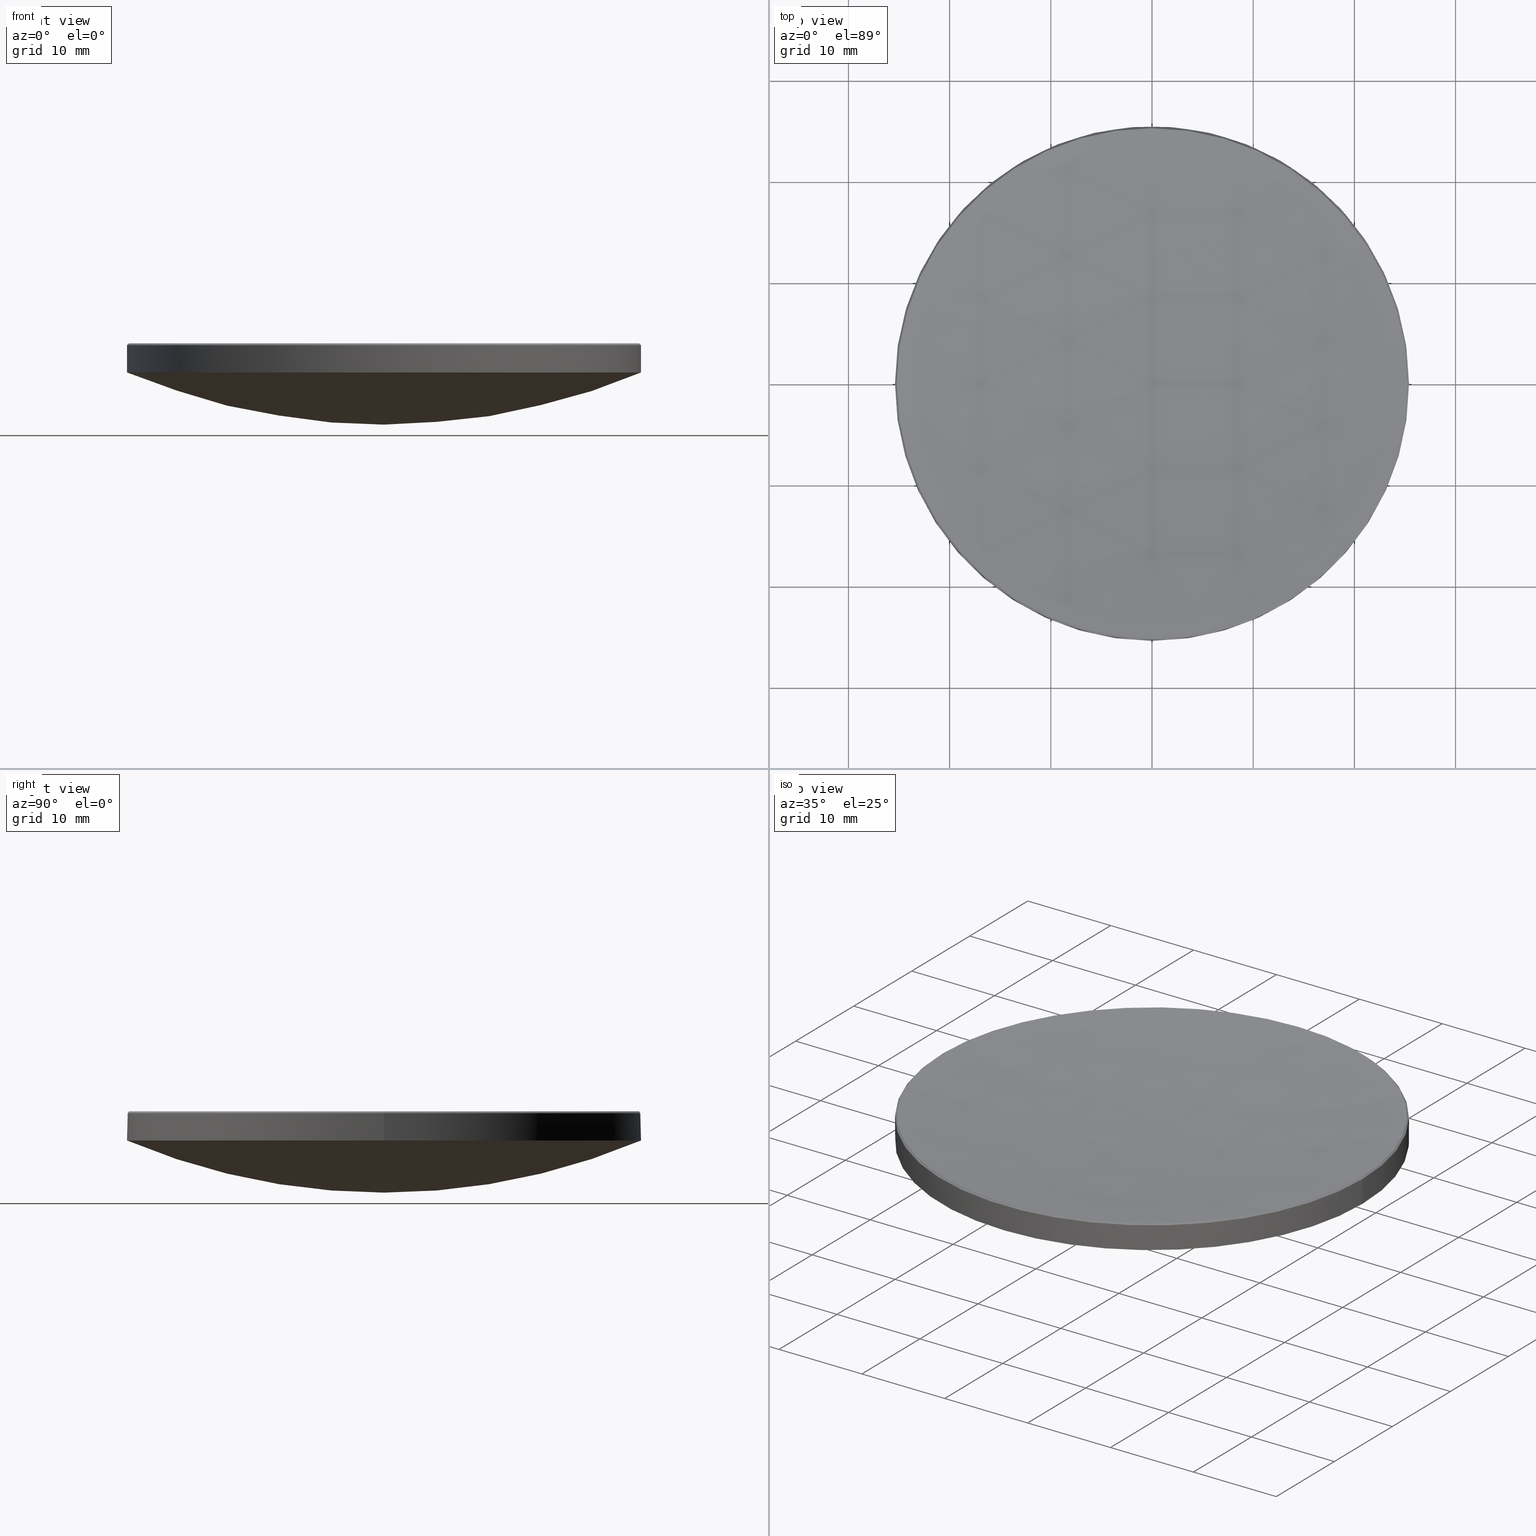
[diagram: canonical four-view strip — front | top / right | iso, engineering-drawing reading convention]
A machine part, canonical four-view strip (front | top / right | iso — engineering-drawing reading convention). The complete STEP part file that produces these views, byte-faithful:
ISO-10303-21;
HEADER;
FILE_DESCRIPTION (( 'STEP AP214' ),
    '1' );
FILE_NAME ('GLM1-050B-200-SWIR.STEP',
    '2024-08-09T02:25:44',
    ( 'Windows User' ),
    ( 'P R C' ),
    'SwSTEP 2.0',
    'SolidWorks 2022',
    '' );
FILE_SCHEMA (( 'AUTOMOTIVE_DESIGN' ));
ENDSEC;

DATA;
#1 = ORIENTED_EDGE ( 'NONE', *, *, #93, .T. ) ;
#2 = CARTESIAN_POINT ( 'NONE',  ( 0.000000000000000000, 0.000000000000000000, 73.00554641031111203 ) ) ;
#3 = EDGE_CURVE ( 'NONE', #21, #91, #188, .T. ) ;
#4 = DIRECTION ( 'NONE',  ( 0.000000000000000000, 1.000000000000000000, 0.000000000000000000 ) ) ;
#5 = EDGE_CURVE ( 'NONE', #98, #58, #267, .T. ) ;
#6 = CARTESIAN_POINT ( 'NONE',  ( 0.000000000000000000, 0.000000000000000000, 13.00000000000000000 ) ) ;
#7 = AXIS2_PLACEMENT_3D ( 'NONE', #14, #265, #189 ) ;
#8 = PRODUCT ( 'GLM1-050B-200-SWIR', 'GLM1-050B-200-SWIR', '', ( #88 ) ) ;
#9 = AXIS2_PLACEMENT_3D ( 'NONE', #42, #233, #34 ) ;
#10 = MECHANICAL_DESIGN_GEOMETRIC_PRESENTATION_REPRESENTATION (  '', ( #87 ), #161 ) ;
#11 = SURFACE_STYLE_FILL_AREA ( #231 ) ;
#12 = DIRECTION ( 'NONE',  ( -0.000000000000000000, -0.000000000000000000, -1.000000000000000000 ) ) ;
#13 = SURFACE_STYLE_USAGE ( .BOTH. , #113 ) ;
#14 = CARTESIAN_POINT ( 'NONE',  ( 0.000000000000000000, 0.000000000000000000, 185.6097522242018840 ) ) ;
#15 = CARTESIAN_POINT ( 'NONE',  ( -25.39999999999999858, 0.000000000000000000, 20.00000000000000000 ) ) ;
#16 = ORIENTED_EDGE ( 'NONE', *, *, #257, .T. ) ;
#17 = AXIS2_PLACEMENT_3D ( 'NONE', #191, #71, #209 ) ;
#18 = CARTESIAN_POINT ( 'NONE',  ( -25.22595727592941373, 0.000000000000000000, 15.87404272407055927 ) ) ;
#19 = DIRECTION ( 'NONE',  ( -1.000000000000000000, 0.000000000000000000, 0.000000000000000000 ) ) ;
#20 = AXIS2_PLACEMENT_3D ( 'NONE', #270, #249, #204 ) ;
#21 = VERTEX_POINT ( 'NONE', #232 ) ;
#22 = CARTESIAN_POINT ( 'NONE',  ( 0.000000000000000000, 0.000000000000000000, 185.6097522242018840 ) ) ;
#23 = CONICAL_SURFACE ( 'NONE', #72, 25.22595727592941373, 0.7853981633974184140 ) ;
#24 = ORIENTED_EDGE ( 'NONE', *, *, #271, .T. ) ;
#25 =( LENGTH_UNIT ( ) NAMED_UNIT ( * ) SI_UNIT ( .MILLI., .METRE. ) );
#26 = CARTESIAN_POINT ( 'NONE',  ( -3.110602869834275682E-15, -25.39999999999998437, 12.99999999999999822 ) ) ;
#27 = EDGE_CURVE ( 'NONE', #58, #192, #95, .T. ) ;
#28 = DIRECTION ( 'NONE',  ( -0.000000000000000000, -0.000000000000000000, 1.000000000000000000 ) ) ;
#29 = CARTESIAN_POINT ( 'NONE',  ( 25.22595727592941373, 3.089288783339484453E-15, 15.87404272407055927 ) ) ;
#30 = AXIS2_PLACEMENT_3D ( 'NONE', #80, #106, #62 ) ;
#31 = AXIS2_PLACEMENT_3D ( 'NONE', #175, #81, #182 ) ;
#32 = SHAPE_DEFINITION_REPRESENTATION ( #196, #97 ) ;
#33 = CARTESIAN_POINT ( 'NONE',  ( 25.39999999999999503, 3.110602869834276471E-15, 13.00000000000000000 ) ) ;
#34 = DIRECTION ( 'NONE',  ( 0.000000000000000000, 0.000000000000000000, -1.000000000000000000 ) ) ;
#35 = SURFACE_STYLE_FILL_AREA ( #254 ) ;
#36 = VERTEX_POINT ( 'NONE', #33 ) ;
#37 = CYLINDRICAL_SURFACE ( 'NONE', #179, 25.39999999999999858 ) ;
#38 = ORIENTED_EDGE ( 'NONE', *, *, #86, .F. ) ;
#39 = AXIS2_PLACEMENT_3D ( 'NONE', #149, #277, #166 ) ;
#40 = CARTESIAN_POINT ( 'NONE',  ( 0.000000000000000000, 0.000000000000000000, 20.00000000000000000 ) ) ;
#41 = VERTEX_POINT ( 'NONE', #90 ) ;
#42 = CARTESIAN_POINT ( 'NONE',  ( 0.000000000000000000, 0.000000000000000000, 73.00554641031111203 ) ) ;
#43 = CIRCLE ( 'NONE', #83, 25.39999999999999503 ) ;
#44 = EDGE_LOOP ( 'NONE', ( #266, #212, #96, #197, #127 ) ) ;
#45 = EDGE_CURVE ( 'NONE', #74, #36, #260, .T. ) ;
#46 = FACE_OUTER_BOUND ( 'NONE', #143, .T. ) ;
#47 = CARTESIAN_POINT ( 'NONE',  ( 0.000000000000000000, 0.000000000000000000, 20.00000000000000000 ) ) ;
#48 = CARTESIAN_POINT ( 'NONE',  ( 0.000000000000000000, 0.000000000000000000, 15.87404272407055927 ) ) ;
#49 = MANIFOLD_SOLID_BREP ( '����1', #137 ) ;
#50 = AXIS2_PLACEMENT_3D ( 'NONE', #64, #61, #160 ) ;
#51 = ORIENTED_EDGE ( 'NONE', *, *, #45, .F. ) ;
#52 = CIRCLE ( 'NONE', #221, 25.22595727592940662 ) ;
#53 = SPHERICAL_SURFACE ( 'NONE', #92, 65.15999999999999659 ) ;
#54 = CARTESIAN_POINT ( 'NONE',  ( -25.22595727592940662, 0.000000000000000000, 15.87404272407055927 ) ) ;
#55 = ORIENTED_EDGE ( 'NONE', *, *, #115, .F. ) ;
#56 = ORIENTED_EDGE ( 'NONE', *, *, #27, .T. ) ;
#57 = DIRECTION ( 'NONE',  ( 0.000000000000000000, 0.000000000000000000, -1.000000000000000000 ) ) ;
#58 = VERTEX_POINT ( 'NONE', #54 ) ;
#59 = CIRCLE ( 'NONE', #227, 25.39999999999999858 ) ;
#60 = VERTEX_POINT ( 'NONE', #114 ) ;
#61 = DIRECTION ( 'NONE',  ( -0.000000000000000000, -0.000000000000000000, 1.000000000000000000 ) ) ;
#62 = DIRECTION ( 'NONE',  ( 0.000000000000000000, 0.000000000000000000, -1.000000000000000000 ) ) ;
#63 = VECTOR ( 'NONE', #133, 1000.000000000000000 ) ;
#64 = CARTESIAN_POINT ( 'NONE',  ( 0.000000000000000000, 0.000000000000000000, 13.00000000000000000 ) ) ;
#65 = FACE_OUTER_BOUND ( 'NONE', #117, .T. ) ;
#66 = CARTESIAN_POINT ( 'NONE',  ( 0.000000000000000000, 0.000000000000000000, 15.87404272407055927 ) ) ;
#67 = DIRECTION ( 'NONE',  ( 1.000000000000000000, 0.000000000000000000, 0.000000000000000000 ) ) ;
#68 =( NAMED_UNIT ( * ) PLANE_ANGLE_UNIT ( ) SI_UNIT ( $, .RADIAN. ) );
#69 =( GEOMETRIC_REPRESENTATION_CONTEXT ( 3 ) GLOBAL_UNCERTAINTY_ASSIGNED_CONTEXT ( ( #136 ) ) GLOBAL_UNIT_ASSIGNED_CONTEXT ( ( #193, #101, #281 ) ) REPRESENTATION_CONTEXT ( 'NONE', 'WORKASPACE' ) );
#70 = COLOUR_RGB ( '',1.000000000000000000, 1.000000000000000000, 1.000000000000000000 ) ;
#71 = DIRECTION ( 'NONE',  ( -0.000000000000000000, -0.000000000000000000, 1.000000000000000000 ) ) ;
#72 = AXIS2_PLACEMENT_3D ( 'NONE', #48, #103, #159 ) ;
#73 = ORIENTED_EDGE ( 'NONE', *, *, #3, .F. ) ;
#74 = VERTEX_POINT ( 'NONE', #210 ) ;
#75 = ORIENTED_EDGE ( 'NONE', *, *, #257, .F. ) ;
#76 = ADVANCED_FACE ( 'NONE', ( #241 ), #169, .F. ) ;
#77 = ORIENTED_EDGE ( 'NONE', *, *, #86, .T. ) ;
#78 = ORIENTED_EDGE ( 'NONE', *, *, #207, .T. ) ;
#79 = DIRECTION ( 'NONE',  ( -0.000000000000000000, -0.000000000000000000, -1.000000000000000000 ) ) ;
#80 = CARTESIAN_POINT ( 'NONE',  ( 0.000000000000000000, 0.000000000000000000, 185.6097522242018840 ) ) ;
#81 = DIRECTION ( 'NONE',  ( -0.000000000000000000, -0.000000000000000000, 1.000000000000000000 ) ) ;
#82 = DIRECTION ( 'NONE',  ( -1.000000000000000000, 0.000000000000000000, 0.000000000000000000 ) ) ;
#83 = AXIS2_PLACEMENT_3D ( 'NONE', #6, #28, #152 ) ;
#84 = AXIS2_PLACEMENT_3D ( 'NONE', #203, #82, #4 ) ;
#85 = PRESENTATION_STYLE_ASSIGNMENT (( #253 ) ) ;
#86 = EDGE_CURVE ( 'NONE', #41, #194, #122, .T. ) ;
#87 = STYLED_ITEM ( 'NONE', ( #85 ), #97 ) ;
#88 = PRODUCT_CONTEXT ( 'NONE', #247, 'mechanical' ) ;
#89 = CIRCLE ( 'NONE', #108, 171.5999999999999659 ) ;
#90 = CARTESIAN_POINT ( 'NONE',  ( 0.000000000000000000, 3.989899271622076049E-15, 7.845546410311113661 ) ) ;
#91 = VERTEX_POINT ( 'NONE', #94 ) ;
#92 = AXIS2_PLACEMENT_3D ( 'NONE', #2, #118, #126 ) ;
#93 = EDGE_CURVE ( 'NONE', #74, #21, #187, .T. ) ;
#94 = CARTESIAN_POINT ( 'NONE',  ( -25.39999999999999503, 0.000000000000000000, 13.00000000000000000 ) ) ;
#95 = CIRCLE ( 'NONE', #17, 25.22595727592940662 ) ;
#96 = ORIENTED_EDGE ( 'NONE', *, *, #27, .F. ) ;
#97 = ADVANCED_BREP_SHAPE_REPRESENTATION ( 'GLM1-050B-200-SWIR', ( #49, #132 ), #163 ) ;
#98 = VERTEX_POINT ( 'NONE', #99 ) ;
#99 = CARTESIAN_POINT ( 'NONE',  ( 0.000000000000000000, 25.22595727592939951, 15.87404272407055927 ) ) ;
#100 = ORIENTED_EDGE ( 'NONE', *, *, #131, .T. ) ;
#101 =( NAMED_UNIT ( * ) PLANE_ANGLE_UNIT ( ) SI_UNIT ( $, .RADIAN. ) );
#102 = ORIENTED_EDGE ( 'NONE', *, *, #230, .F. ) ;
#103 = DIRECTION ( 'NONE',  ( 0.000000000000000000, 0.000000000000000000, -1.000000000000000000 ) ) ;
#104 = FACE_OUTER_BOUND ( 'NONE', #44, .T. ) ;
#105 = AXIS2_PLACEMENT_3D ( 'NONE', #167, #234, #141 ) ;
#106 = DIRECTION ( 'NONE',  ( 1.000000000000000000, 0.000000000000000000, 0.000000000000000000 ) ) ;
#107 = CIRCLE ( 'NONE', #31, 25.39999999999999503 ) ;
#108 = AXIS2_PLACEMENT_3D ( 'NONE', #22, #151, #236 ) ;
#109 = UNCERTAINTY_MEASURE_WITH_UNIT (LENGTH_MEASURE( 1.000000000000000082E-05 ), #112, 'distance_accuracy_value', 'NONE');
#110 = APPLICATION_PROTOCOL_DEFINITION ( 'draft international standard', 'automotive_design', 1998, #247 ) ;
#111 = SURFACE_SIDE_STYLE ('',( #11 ) ) ;
#112 =( LENGTH_UNIT ( ) NAMED_UNIT ( * ) SI_UNIT ( .MILLI., .METRE. ) );
#113 = SURFACE_SIDE_STYLE ('',( #35 ) ) ;
#114 = CARTESIAN_POINT ( 'NONE',  ( 25.22595727592940662, 3.099945826586880264E-15, 15.87404272407055927 ) ) ;
#115 = EDGE_CURVE ( 'NONE', #21, #74, #59, .T. ) ;
#116 = VERTEX_POINT ( 'NONE', #220 ) ;
#117 = EDGE_LOOP ( 'NONE', ( #123, #78, #55, #172, #222 ) ) ;
#118 = DIRECTION ( 'NONE',  ( -1.000000000000000000, 0.000000000000000000, 0.000000000000000000 ) ) ;
#119 = PRODUCT_DEFINITION ( 'δ֪', '', #147, #251 ) ;
#120 = ORIENTED_EDGE ( 'NONE', *, *, #5, .T. ) ;
#121 = DIRECTION ( 'NONE',  ( -0.000000000000000000, -0.000000000000000000, -1.000000000000000000 ) ) ;
#122 = CIRCLE ( 'NONE', #39, 65.15999999999999659 ) ;
#123 = ORIENTED_EDGE ( 'NONE', *, *, #214, .F. ) ;
#124 = DIRECTION ( 'NONE',  ( -0.7071067811865263675, 0.000000000000000000, -0.7071067811865686670 ) ) ;
#125 = ORIENTED_EDGE ( 'NONE', *, *, #214, .T. ) ;
#126 = DIRECTION ( 'NONE',  ( 0.000000000000000000, 1.000000000000000000, 0.000000000000000000 ) ) ;
#127 = ORIENTED_EDGE ( 'NONE', *, *, #93, .F. ) ;
#128 = AXIS2_PLACEMENT_3D ( 'NONE', #183, #206, #248 ) ;
#129 =( NAMED_UNIT ( * ) PLANE_ANGLE_UNIT ( ) SI_UNIT ( $, .RADIAN. ) );
#130 = CARTESIAN_POINT ( 'NONE',  ( -3.089288783339482875E-15, -25.22595727592939951, 15.87404272407055927 ) ) ;
#131 = EDGE_CURVE ( 'NONE', #116, #192, #89, .T. ) ;
#132 = AXIS2_PLACEMENT_3D ( 'NONE', #250, #138, #67 ) ;
#133 = DIRECTION ( 'NONE',  ( 0.7071067811865263675, 8.659560562354675246E-17, -0.7071067811865686670 ) ) ;
#134 = EDGE_CURVE ( 'NONE', #192, #60, #52, .T. ) ;
#135 = CIRCLE ( 'NONE', #9, 65.15999999999999659 ) ;
#136 = UNCERTAINTY_MEASURE_WITH_UNIT (LENGTH_MEASURE( 1.000000000000000082E-05 ), #193, 'distance_accuracy_value', 'NONE');
#137 = CLOSED_SHELL ( 'NONE', ( #178, #185, #186, #176, #158, #145, #76, #224 ) ) ;
#138 = DIRECTION ( 'NONE',  ( 0.000000000000000000, 0.000000000000000000, 1.000000000000000000 ) ) ;
#139 = CIRCLE ( 'NONE', #20, 25.39999999999999503 ) ;
#140 = APPLICATION_PROTOCOL_DEFINITION ( 'draft international standard', 'automotive_design', 1998, #259 ) ;
#141 = DIRECTION ( 'NONE',  ( 1.000000000000000000, 0.000000000000000000, 0.000000000000000000 ) ) ;
#142 = FILL_AREA_STYLE_COLOUR ( '', #162 ) ;
#143 = EDGE_LOOP ( 'NONE', ( #168, #77, #75, #282 ) ) ;
#144 = DIRECTION ( 'NONE',  ( 1.000000000000000000, 0.000000000000000000, 0.000000000000000000 ) ) ;
#145 = ADVANCED_FACE ( 'NONE', ( #243 ), #53, .T. ) ;
#146 = CARTESIAN_POINT ( 'NONE',  ( 0.000000000000000000, 0.000000000000000000, 15.69999999999996376 ) ) ;
#147 = PRODUCT_DEFINITION_FORMATION_WITH_SPECIFIED_SOURCE ( '�κ�', '', #8, .NOT_KNOWN. ) ;
#148 = EDGE_LOOP ( 'NONE', ( #38, #199, #102, #217 ) ) ;
#149 = CARTESIAN_POINT ( 'NONE',  ( 0.000000000000000000, 0.000000000000000000, 73.00554641031111203 ) ) ;
#150 = VECTOR ( 'NONE', #211, 1000.000000000000000 ) ;
#151 = DIRECTION ( 'NONE',  ( -1.000000000000000000, 1.224646799147353207E-16, 0.000000000000000000 ) ) ;
#152 = DIRECTION ( 'NONE',  ( 1.000000000000000000, 0.000000000000000000, 0.000000000000000000 ) ) ;
#153 = CONICAL_SURFACE ( 'NONE', #274, 25.22595727592941373, 0.7853981633974184140 ) ;
#154 = CIRCLE ( 'NONE', #30, 171.5999999999999659 ) ;
#155 = DIRECTION ( 'NONE',  ( 0.000000000000000000, 1.000000000000000000, 0.000000000000000000 ) ) ;
#156 = EDGE_CURVE ( 'NONE', #41, #240, #135, .T. ) ;
#157 = SPHERICAL_SURFACE ( 'NONE', #190, 171.5999999999999659 ) ;
#158 = ADVANCED_FACE ( 'NONE', ( #213 ), #37, .T. ) ;
#159 = DIRECTION ( 'NONE',  ( -1.000000000000000000, 0.000000000000000000, 0.000000000000000000 ) ) ;
#160 = DIRECTION ( 'NONE',  ( 1.000000000000000000, 0.000000000000000000, 0.000000000000000000 ) ) ;
#161 =( GEOMETRIC_REPRESENTATION_CONTEXT ( 3 ) GLOBAL_UNCERTAINTY_ASSIGNED_CONTEXT ( ( #109 ) ) GLOBAL_UNIT_ASSIGNED_CONTEXT ( ( #112, #68, #229 ) ) REPRESENTATION_CONTEXT ( 'NONE', 'WORKASPACE' ) );
#162 = COLOUR_RGB ( '',1.000000000000000000, 1.000000000000000000, 1.000000000000000000 ) ;
#163 =( GEOMETRIC_REPRESENTATION_CONTEXT ( 3 ) GLOBAL_UNCERTAINTY_ASSIGNED_CONTEXT ( ( #181 ) ) GLOBAL_UNIT_ASSIGNED_CONTEXT ( ( #25, #129, #177 ) ) REPRESENTATION_CONTEXT ( 'NONE', 'WORKASPACE' ) );
#164 = VECTOR ( 'NONE', #124, 1000.000000000000000 ) ;
#165 = EDGE_LOOP ( 'NONE', ( #174, #201, #120, #56 ) ) ;
#166 = DIRECTION ( 'NONE',  ( -1.224646799147352961E-16, -1.000000000000000000, 0.000000000000000000 ) ) ;
#167 = CARTESIAN_POINT ( 'NONE',  ( 0.000000000000000000, 0.000000000000000000, 15.87404272407055927 ) ) ;
#168 = ORIENTED_EDGE ( 'NONE', *, *, #156, .F. ) ;
#169 = SPHERICAL_SURFACE ( 'NONE', #7, 171.5999999999999659 ) ;
#170 = PRESENTATION_LAYER_ASSIGNMENT (  '', '', ( #87 ) ) ;
#171 = EDGE_CURVE ( 'NONE', #58, #21, #215, .T. ) ;
#172 = ORIENTED_EDGE ( 'NONE', *, *, #171, .F. ) ;
#173 = DIRECTION ( 'NONE',  ( 0.000000000000000000, 0.000000000000000000, -1.000000000000000000 ) ) ;
#174 = ORIENTED_EDGE ( 'NONE', *, *, #131, .F. ) ;
#175 = CARTESIAN_POINT ( 'NONE',  ( 0.000000000000000000, 0.000000000000000000, 13.00000000000000000 ) ) ;
#176 = ADVANCED_FACE ( 'NONE', ( #218 ), #198, .T. ) ;
#177 =( NAMED_UNIT ( * ) SI_UNIT ( $, .STERADIAN. ) SOLID_ANGLE_UNIT ( ) );
#178 = ADVANCED_FACE ( 'NONE', ( #65 ), #23, .T. ) ;
#179 = AXIS2_PLACEMENT_3D ( 'NONE', #40, #121, #19 ) ;
#180 = DIRECTION ( 'NONE',  ( 0.000000000000000000, 0.000000000000000000, -1.000000000000000000 ) ) ;
#181 = UNCERTAINTY_MEASURE_WITH_UNIT (LENGTH_MEASURE( 1.000000000000000082E-05 ), #25, 'distance_accuracy_value', 'NONE');
#182 = DIRECTION ( 'NONE',  ( 1.000000000000000000, 0.000000000000000000, 0.000000000000000000 ) ) ;
#183 = CARTESIAN_POINT ( 'NONE',  ( 0.000000000000000000, 0.000000000000000000, 15.87404272407055927 ) ) ;
#184 = CIRCLE ( 'NONE', #50, 25.39999999999999503 ) ;
#185 = ADVANCED_FACE ( 'NONE', ( #226 ), #157, .F. ) ;
#186 = ADVANCED_FACE ( 'NONE', ( #46 ), #246, .T. ) ;
#187 = CIRCLE ( 'NONE', #205, 25.39999999999999858 ) ;
#188 = LINE ( 'NONE', #15, #272 ) ;
#189 = DIRECTION ( 'NONE',  ( 0.000000000000000000, 1.000000000000000000, 0.000000000000000000 ) ) ;
#190 = AXIS2_PLACEMENT_3D ( 'NONE', #228, #273, #155 ) ;
#191 = CARTESIAN_POINT ( 'NONE',  ( 0.000000000000000000, 0.000000000000000000, 15.87404272407055927 ) ) ;
#192 = VERTEX_POINT ( 'NONE', #130 ) ;
#193 =( LENGTH_UNIT ( ) NAMED_UNIT ( * ) SI_UNIT ( .MILLI., .METRE. ) );
#194 = VERTEX_POINT ( 'NONE', #26 ) ;
#195 = DIRECTION ( 'NONE',  ( 1.000000000000000000, 0.000000000000000000, 0.000000000000000000 ) ) ;
#196 = PRODUCT_DEFINITION_SHAPE ( 'NONE', 'NONE',  #119 ) ;
#197 = ORIENTED_EDGE ( 'NONE', *, *, #171, .T. ) ;
#198 = CYLINDRICAL_SURFACE ( 'NONE', #278, 25.39999999999999858 ) ;
#199 = ORIENTED_EDGE ( 'NONE', *, *, #156, .T. ) ;
#200 = DIRECTION ( 'NONE',  ( 1.000000000000000000, 0.000000000000000000, 0.000000000000000000 ) ) ;
#201 = ORIENTED_EDGE ( 'NONE', *, *, #202, .T. ) ;
#202 = EDGE_CURVE ( 'NONE', #116, #98, #154, .T. ) ;
#203 = CARTESIAN_POINT ( 'NONE',  ( 0.000000000000000000, 0.000000000000000000, 73.00554641031111203 ) ) ;
#204 = DIRECTION ( 'NONE',  ( 1.000000000000000000, 0.000000000000000000, 0.000000000000000000 ) ) ;
#205 = AXIS2_PLACEMENT_3D ( 'NONE', #262, #57, #195 ) ;
#206 = DIRECTION ( 'NONE',  ( -0.000000000000000000, -0.000000000000000000, 1.000000000000000000 ) ) ;
#207 = EDGE_CURVE ( 'NONE', #60, #74, #269, .T. ) ;
#208 = FILL_AREA_STYLE_COLOUR ( '', #70 ) ;
#209 = DIRECTION ( 'NONE',  ( 1.000000000000000000, 0.000000000000000000, 0.000000000000000000 ) ) ;
#210 = CARTESIAN_POINT ( 'NONE',  ( 25.39999999999999858, 3.110602869834276865E-15, 15.69999999999996376 ) ) ;
#211 = DIRECTION ( 'NONE',  ( -0.000000000000000000, -0.000000000000000000, -1.000000000000000000 ) ) ;
#212 = ORIENTED_EDGE ( 'NONE', *, *, #134, .F. ) ;
#213 = FACE_OUTER_BOUND ( 'NONE', #268, .T. ) ;
#214 = EDGE_CURVE ( 'NONE', #60, #98, #255, .T. ) ;
#215 = LINE ( 'NONE', #18, #164 ) ;
#216 = MECHANICAL_DESIGN_GEOMETRIC_PRESENTATION_REPRESENTATION (  '', ( #275 ), #69 ) ;
#217 = ORIENTED_EDGE ( 'NONE', *, *, #237, .F. ) ;
#218 = FACE_OUTER_BOUND ( 'NONE', #219, .T. ) ;
#219 = EDGE_LOOP ( 'NONE', ( #235, #264, #261, #24, #73 ) ) ;
#220 = CARTESIAN_POINT ( 'NONE',  ( 0.000000000000000000, 1.050746953668428865E-14, 14.00975222420192168 ) ) ;
#221 = AXIS2_PLACEMENT_3D ( 'NONE', #258, #239, #200 ) ;
#222 = ORIENTED_EDGE ( 'NONE', *, *, #5, .F. ) ;
#223 = DIRECTION ( 'NONE',  ( -1.000000000000000000, 0.000000000000000000, 0.000000000000000000 ) ) ;
#224 = ADVANCED_FACE ( 'NONE', ( #104 ), #153, .T. ) ;
#225 = CARTESIAN_POINT ( 'NONE',  ( 0.000000000000000000, 25.39999999999998437, 12.99999999999999822 ) ) ;
#226 = FACE_OUTER_BOUND ( 'NONE', #244, .T. ) ;
#227 = AXIS2_PLACEMENT_3D ( 'NONE', #146, #173, #144 ) ;
#228 = CARTESIAN_POINT ( 'NONE',  ( 0.000000000000000000, 0.000000000000000000, 185.6097522242018840 ) ) ;
#229 =( NAMED_UNIT ( * ) SI_UNIT ( $, .STERADIAN. ) SOLID_ANGLE_UNIT ( ) );
#230 = EDGE_CURVE ( 'NONE', #36, #240, #139, .T. ) ;
#231 = FILL_AREA_STYLE ('',( #208 ) ) ;
#232 = CARTESIAN_POINT ( 'NONE',  ( -25.39999999999999858, 0.000000000000000000, 15.69999999999996376 ) ) ;
#233 = DIRECTION ( 'NONE',  ( 1.000000000000000000, -0.000000000000000000, 0.000000000000000000 ) ) ;
#234 = DIRECTION ( 'NONE',  ( -0.000000000000000000, -0.000000000000000000, 1.000000000000000000 ) ) ;
#235 = ORIENTED_EDGE ( 'NONE', *, *, #115, .T. ) ;
#236 = DIRECTION ( 'NONE',  ( -1.224646799147353207E-16, -1.000000000000000000, 0.000000000000000000 ) ) ;
#237 = EDGE_CURVE ( 'NONE', #194, #36, #184, .T. ) ;
#238 = ORIENTED_EDGE ( 'NONE', *, *, #134, .T. ) ;
#239 = DIRECTION ( 'NONE',  ( -0.000000000000000000, -0.000000000000000000, 1.000000000000000000 ) ) ;
#240 = VERTEX_POINT ( 'NONE', #225 ) ;
#241 = FACE_OUTER_BOUND ( 'NONE', #165, .T. ) ;
#242 = ORIENTED_EDGE ( 'NONE', *, *, #202, .F. ) ;
#243 = FACE_OUTER_BOUND ( 'NONE', #148, .T. ) ;
#244 = EDGE_LOOP ( 'NONE', ( #242, #100, #238, #125 ) ) ;
#245 = DIRECTION ( 'NONE',  ( -1.000000000000000000, 0.000000000000000000, 0.000000000000000000 ) ) ;
#246 = SPHERICAL_SURFACE ( 'NONE', #84, 65.15999999999999659 ) ;
#247 = APPLICATION_CONTEXT ( 'automotive_design' ) ;
#248 = DIRECTION ( 'NONE',  ( 1.000000000000000000, 0.000000000000000000, 0.000000000000000000 ) ) ;
#249 = DIRECTION ( 'NONE',  ( -0.000000000000000000, -0.000000000000000000, 1.000000000000000000 ) ) ;
#250 = CARTESIAN_POINT ( 'NONE',  ( 0.000000000000000000, 0.000000000000000000, 0.000000000000000000 ) ) ;
#251 = PRODUCT_DEFINITION_CONTEXT ( 'detailed design', #259, 'design' ) ;
#252 = PRESENTATION_LAYER_ASSIGNMENT (  '', '', ( #275 ) ) ;
#253 = SURFACE_STYLE_USAGE ( .BOTH. , #111 ) ;
#254 = FILL_AREA_STYLE ('',( #142 ) ) ;
#255 = CIRCLE ( 'NONE', #128, 25.22595727592940662 ) ;
#256 = ORIENTED_EDGE ( 'NONE', *, *, #237, .T. ) ;
#257 = EDGE_CURVE ( 'NONE', #91, #194, #43, .T. ) ;
#258 = CARTESIAN_POINT ( 'NONE',  ( 0.000000000000000000, 0.000000000000000000, 15.87404272407055927 ) ) ;
#259 = APPLICATION_CONTEXT ( 'automotive_design' ) ;
#260 = LINE ( 'NONE', #276, #150 ) ;
#261 = ORIENTED_EDGE ( 'NONE', *, *, #230, .T. ) ;
#262 = CARTESIAN_POINT ( 'NONE',  ( 0.000000000000000000, 0.000000000000000000, 15.69999999999996376 ) ) ;
#263 = PRODUCT_RELATED_PRODUCT_CATEGORY ( 'part', '', ( #8 ) ) ;
#264 = ORIENTED_EDGE ( 'NONE', *, *, #45, .T. ) ;
#265 = DIRECTION ( 'NONE',  ( -1.000000000000000000, 0.000000000000000000, 0.000000000000000000 ) ) ;
#266 = ORIENTED_EDGE ( 'NONE', *, *, #207, .F. ) ;
#267 = CIRCLE ( 'NONE', #105, 25.22595727592940662 ) ;
#268 = EDGE_LOOP ( 'NONE', ( #51, #1, #280, #16, #256 ) ) ;
#269 = LINE ( 'NONE', #29, #63 ) ;
#270 = CARTESIAN_POINT ( 'NONE',  ( 0.000000000000000000, 0.000000000000000000, 13.00000000000000000 ) ) ;
#271 = EDGE_CURVE ( 'NONE', #240, #91, #107, .T. ) ;
#272 = VECTOR ( 'NONE', #12, 1000.000000000000000 ) ;
#273 = DIRECTION ( 'NONE',  ( -1.000000000000000000, 0.000000000000000000, 0.000000000000000000 ) ) ;
#274 = AXIS2_PLACEMENT_3D ( 'NONE', #66, #180, #245 ) ;
#275 = STYLED_ITEM ( 'NONE', ( #279 ), #49 ) ;
#276 = CARTESIAN_POINT ( 'NONE',  ( 25.39999999999999858, 3.110602869834276865E-15, 20.00000000000000000 ) ) ;
#277 = DIRECTION ( 'NONE',  ( -1.000000000000000000, 1.224646799147353207E-16, 0.000000000000000000 ) ) ;
#278 = AXIS2_PLACEMENT_3D ( 'NONE', #47, #79, #223 ) ;
#279 = PRESENTATION_STYLE_ASSIGNMENT (( #13 ) ) ;
#280 = ORIENTED_EDGE ( 'NONE', *, *, #3, .T. ) ;
#281 =( NAMED_UNIT ( * ) SI_UNIT ( $, .STERADIAN. ) SOLID_ANGLE_UNIT ( ) );
#282 = ORIENTED_EDGE ( 'NONE', *, *, #271, .F. ) ;
ENDSEC;
END-ISO-10303-21;
